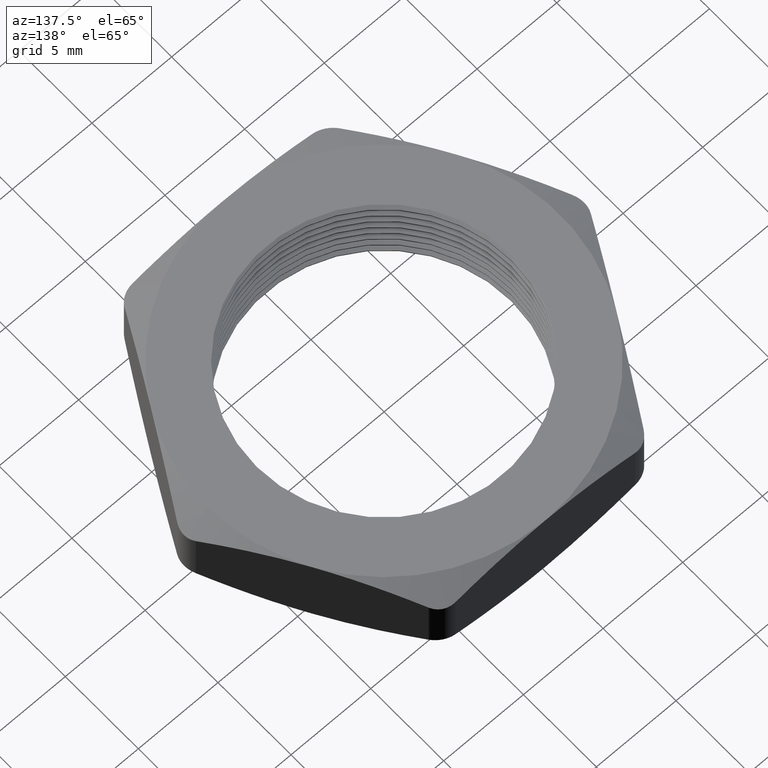
[diagram: clean part render]
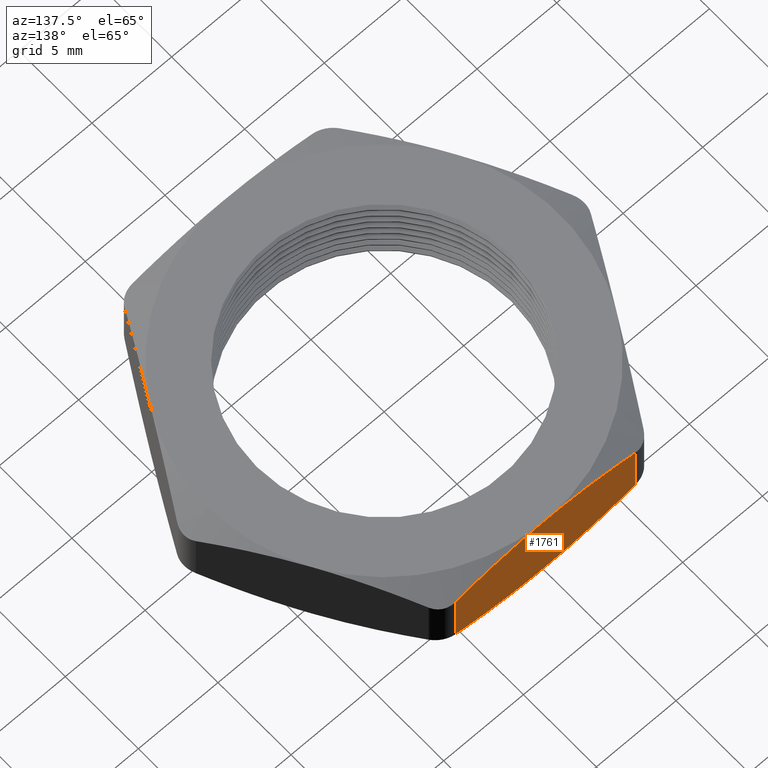
[diagram: same view with one face highlighted and labeled with its STEP entity id]
A machine part, auxiliary view. The second image highlights one B-rep face of the part: STEP entity #1761.
In plain terms, the highlighted planar face has unit normal (0, -1, 0).
Its self-contained STEP definition (entity closure, byte-faithful):
#87 = PLANE ( 'NONE',  #90 ) ;
#88 = FACE_OUTER_BOUND ( 'NONE', #1628, .T. ) ;
#90 = AXIS2_PLACEMENT_3D ( 'NONE', #167, #166, #165 ) ;
#140 = CARTESIAN_POINT ( 'NONE',  ( 0.0000000000000000000, 0.4350000000000000500, 0.0000000000000000000 ) ) ;
#158 = DIRECTION ( 'NONE',  ( 0.0000000000000000000, 0.0000000000000000000, 1.000000000000000000 ) ) ;
#159 = VECTOR ( 'NONE', #158, 39.37007874015748100 ) ;
#160 = CARTESIAN_POINT ( 'NONE',  ( -0.2222798536380059000, 0.4350000000000000500, 0.2000000000000000100 ) ) ;
#161 = LINE ( 'NONE', #160, #159 ) ;
#165 = DIRECTION ( 'NONE',  ( 0.0000000000000000000, 0.0000000000000000000, -1.000000000000000000 ) ) ;
#166 = DIRECTION ( 'NONE',  ( 0.0000000000000000000, -1.000000000000000000, 0.0000000000000000000 ) ) ;
#167 = CARTESIAN_POINT ( 'NONE',  ( 0.2511473670974874200, 0.4350000000000000500, 0.2000000000000000100 ) ) ;
#1016 = B_SPLINE_CURVE_WITH_KNOTS ( 'NONE', 3,
 ( #1059, #1058, #1057, #1056, #1055, #1054, #1053, #1052 ),
 .UNSPECIFIED., .F., .F.,
 ( 4, 2, 2, 4 ),
 ( 0.01277533377973569400, 0.01420118800142426300, 0.01562704222311283100, 0.01847875066648996300 ),
 .UNSPECIFIED. ) ;
#1017 = CARTESIAN_POINT ( 'NONE',  ( -0.2222798536380073100, 0.4350000000000000500, 0.03088887958801333000 ) ) ;
#1032 = CARTESIAN_POINT ( 'NONE',  ( 0.03753014324371326700, 0.4350000000000000000, -5.702465904743516400E-018 ) ) ;
#1033 = CARTESIAN_POINT ( 'NONE',  ( 0.0000000000000000000, 0.4350000000000000500, 0.0000000000000000000 ) ) ;
#1035 = CARTESIAN_POINT ( 'NONE',  ( 0.0000000000000000000, 0.4350000000000000500, 0.2000000000000000100 ) ) ;
#1052 = CARTESIAN_POINT ( 'NONE',  ( 0.0000000000000000000, 0.4350000000000000500, 0.0000000000000000000 ) ) ;
#1053 = CARTESIAN_POINT ( 'NONE',  ( -0.03754142657034497500, 0.4349999999999999400, 4.787255327438999700E-018 ) ) ;
#1054 = CARTESIAN_POINT ( 'NONE',  ( -0.07481306858992847800, 0.4350000000000001600, 0.002844342963581075300 ) ) ;
#1055 = CARTESIAN_POINT ( 'NONE',  ( -0.1303676137546036200, 0.4350000000000000000, 0.01083167627107337000 ) ) ;
#1056 = CARTESIAN_POINT ( 'NONE',  ( -0.1488276767582706300, 0.4350000000000000500, 0.01410686730718185800 ) ) ;
#1057 = CARTESIAN_POINT ( 'NONE',  ( -0.1856455972832766500, 0.4350000000000000000, 0.02173480346349658200 ) ) ;
#1058 = CARTESIAN_POINT ( 'NONE',  ( -0.2040460030634049200, 0.4350000000000001600, 0.02609869430200709900 ) ) ;
#1059 = CARTESIAN_POINT ( 'NONE',  ( -0.2222798536380073100, 0.4350000000000000500, 0.03088887958801333000 ) ) ;
#1060 = CARTESIAN_POINT ( 'NONE',  ( 0.0000000000000000000, 0.4350000000000000500, 0.2000000000000000100 ) ) ;
#1061 = CARTESIAN_POINT ( 'NONE',  ( 0.03753014324371321800, 0.4350000000000000000, 0.2000000000000000400 ) ) ;
#1062 = CARTESIAN_POINT ( 'NONE',  ( 0.07552621429603775800, 0.4350000000000000500, 0.1970876342399201500 ) ) ;
#1063 = CARTESIAN_POINT ( 'NONE',  ( 0.1497328604320505300, 0.4350000000000000500, 0.1863488499652798100 ) ) ;
#1064 = CARTESIAN_POINT ( 'NONE',  ( 0.1862242521617525100, 0.4350000000000000500, 0.1785832289478669300 ) ) ;
#1065 = CARTESIAN_POINT ( 'NONE',  ( 0.2222798536380062900, 0.4350000000000000500, 0.1691111204119868900 ) ) ;
#1074 = CARTESIAN_POINT ( 'NONE',  ( 0.0000000000000000000, 0.4350000000000000500, 0.2000000000000000100 ) ) ;
#1075 = B_SPLINE_CURVE_WITH_KNOTS ( 'NONE', 3,
 ( #1035, #1117, #1116, #1115, #1123, #1122, #1121, #1120 ),
 .UNSPECIFIED., .F., .F.,
 ( 4, 2, 2, 4 ),
 ( 0.03818616733108776800, 0.04103675703255532000, 0.04246205188328908800, 0.04388734673402286400 ),
 .UNSPECIFIED. ) ;
#1076 = VECTOR ( 'NONE', #1083, 39.37007874015748100 ) ;
#1077 = CARTESIAN_POINT ( 'NONE',  ( 0.2222798536380062600, 0.4350000000000000500, 0.2000000000000000100 ) ) ;
#1078 = LINE ( 'NONE', #1077, #1076 ) ;
#1080 = B_SPLINE_CURVE_WITH_KNOTS ( 'NONE', 3,
 ( #1033, #1032, #1141, #1140, #1139, #1138 ),
 .UNSPECIFIED., .F., .F.,
 ( 4, 2, 4 ),
 ( 0.01847875066648996300, 0.02132960200983750200, 0.02418045335318504500 ),
 .UNSPECIFIED. ) ;
#1082 = CARTESIAN_POINT ( 'NONE',  ( 0.2222798536380062900, 0.4350000000000000500, 0.03088887958801311500 ) ) ;
#1083 = DIRECTION ( 'NONE',  ( 0.0000000000000000000, 0.0000000000000000000, -1.000000000000000000 ) ) ;
#1115 = CARTESIAN_POINT ( 'NONE',  ( -0.1303676137546034800, 0.4350000000000001600, 0.1891683237289267200 ) ) ;
#1116 = CARTESIAN_POINT ( 'NONE',  ( -0.07481306858992840800, 0.4350000000000000000, 0.1971556570364189900 ) ) ;
#1117 = CARTESIAN_POINT ( 'NONE',  ( -0.03754142657034505200, 0.4350000000000000500, 0.1999999999999999800 ) ) ;
#1118 = CARTESIAN_POINT ( 'NONE',  ( 0.2222798536380062900, 0.4350000000000000500, 0.1691111204119868900 ) ) ;
#1119 = B_SPLINE_CURVE_WITH_KNOTS ( 'NONE', 3,
 ( #1065, #1064, #1063, #1062, #1061, #1060 ),
 .UNSPECIFIED., .F., .F.,
 ( 4, 2, 4 ),
 ( 0.03248670145572114100, 0.03533643439340445500, 0.03818616733108776800 ),
 .UNSPECIFIED. ) ;
#1120 = CARTESIAN_POINT ( 'NONE',  ( -0.2222798536380073100, 0.4350000000000000500, 0.1691111204119867000 ) ) ;
#1121 = CARTESIAN_POINT ( 'NONE',  ( -0.2040460030634048400, 0.4350000000000000000, 0.1739013056979929700 ) ) ;
#1122 = CARTESIAN_POINT ( 'NONE',  ( -0.1856455972832765400, 0.4350000000000001600, 0.1782651965365034700 ) ) ;
#1123 = CARTESIAN_POINT ( 'NONE',  ( -0.1488276767582705800, 0.4350000000000000500, 0.1858931326928181800 ) ) ;
#1138 = CARTESIAN_POINT ( 'NONE',  ( 0.2222798536380062900, 0.4350000000000000500, 0.03088887958801311500 ) ) ;
#1139 = CARTESIAN_POINT ( 'NONE',  ( 0.1862242521617525600, 0.4350000000000000500, 0.02141677105213304600 ) ) ;
#1140 = CARTESIAN_POINT ( 'NONE',  ( 0.1497328604320504500, 0.4350000000000000500, 0.01365115003472022400 ) ) ;
#1141 = CARTESIAN_POINT ( 'NONE',  ( 0.07552621429603773000, 0.4350000000000000500, 0.002912365760079884500 ) ) ;
#1320 = VERTEX_POINT ( 'NONE', #2156 ) ;
#1605 = EDGE_CURVE ( 'NONE', #1606, #1320, #1075, .T. ) ;
#1606 = VERTEX_POINT ( 'NONE', #1074 ) ;
#1607 = ORIENTED_EDGE ( 'NONE', *, *, #1608, .F. ) ;
#1608 = EDGE_CURVE ( 'NONE', #1609, #1606, #1119, .T. ) ;
#1609 = VERTEX_POINT ( 'NONE', #1118 ) ;
#1610 = ORIENTED_EDGE ( 'NONE', *, *, #1611, .T. ) ;
#1611 = EDGE_CURVE ( 'NONE', #1609, #1612, #1078, .T. ) ;
#1612 = VERTEX_POINT ( 'NONE', #1082 ) ;
#1613 = ORIENTED_EDGE ( 'NONE', *, *, #1614, .F. ) ;
#1614 = EDGE_CURVE ( 'NONE', #1753, #1612, #1080, .T. ) ;
#1628 = EDGE_LOOP ( 'NONE', ( #1629, #1754, #1738, #1607, #1610, #1613 ) ) ;
#1629 = ORIENTED_EDGE ( 'NONE', *, *, #1630, .F. ) ;
#1630 = EDGE_CURVE ( 'NONE', #1631, #1753, #1016, .T. ) ;
#1631 = VERTEX_POINT ( 'NONE', #1017 ) ;
#1738 = ORIENTED_EDGE ( 'NONE', *, *, #1605, .F. ) ;
#1753 = VERTEX_POINT ( 'NONE', #140 ) ;
#1754 = ORIENTED_EDGE ( 'NONE', *, *, #1755, .T. ) ;
#1755 = EDGE_CURVE ( 'NONE', #1631, #1320, #161, .T. ) ;
#1761 = ADVANCED_FACE ( 'NONE', ( #88 ), #87, .F. ) ;
#2156 = CARTESIAN_POINT ( 'NONE',  ( -0.2222798536380073100, 0.4350000000000000500, 0.1691111204119867000 ) ) ;